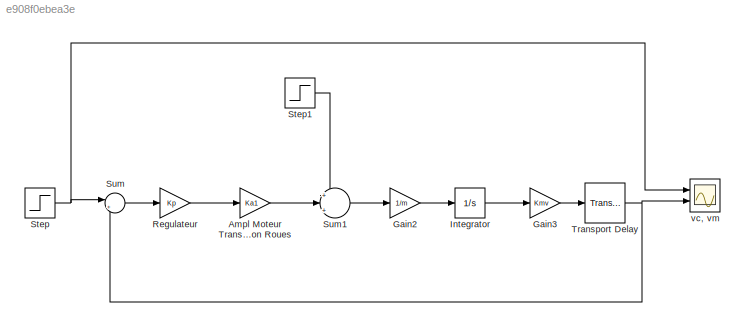
MODEL slx_e908f0ebea3e
KIND model
CONFIG AbsTol = auto
CONFIG EnableMultiTasking = off
CONFIG FixedStep = auto
CONFIG MaxStep = calculationPrecision
CONFIG MinStep = auto
CONFIG RelTol = 1e-3
CONFIG SampleTimeConstraint = Unconstrained
CONFIG SolverName = VariableStepAuto
CONFIG StartTime = 0.0
CONFIG StopTime = simTime
BLOCK [Gain] Ampl Moteur Transmission Roues 
  Gain = Ka1
BLOCK [Gain] Gain2
  Gain = 1/m
BLOCK [Gain] Gain3
  Gain = Kmv
BLOCK [Integrator] Integrator
  Ports = [1, 1]
BLOCK [Gain] Regulateur
  Gain = Kp
BLOCK [Step] Step
  After = vc
  SampleTime = 0
BLOCK [Step] Step1
  After = -m*g*sin(alpha)
  SampleTime = 0
  Time = tSlope
BLOCK [Sum] Sum
  Inputs = |+-
  Ports = [2, 1]
BLOCK [Sum] Sum1
  Inputs = +|+|-
  Ports = [3, 1]
BLOCK [TransportDelay] Transport Delay
  DelayTime = delay
  Ports = [1, 1]
BLOCK [Scope] vc, vm
  Floating = off
  NumInputPorts = 2
  Ports = [2]
  ScopeSpecificationString = Simulink.scopes.TimeScopeBlockCfg('CurrentConfiguration', extmgr.ConfigurationSet(extmgr.Configuration('Core','General UI',true),extmgr.Configuration('Core','Source UI',true),extmgr.Configuration('Sources','WiredSimulink',true),extmgr.Configuration('Visuals','Time Domain',true,'SerializedDisplays',{struct('MinYLimReal','-0.32205','MaxYLimReal','2.89848','YLabelReal','','MinYLimMag','0.00000','MaxY...<+1421ch>
LINE Ampl Moteur Transmission Roues :1 -> Sum1:2
LINE Gain2:1 -> Integrator:1
LINE Gain3:1 -> Transport Delay:1
LINE Integrator:1 -> Gain3:1
LINE Regulateur:1 -> Ampl Moteur Transmission Roues :1
LINE Step1:1 -> Sum1:1
NET Step:1 -> Sum:1, vc, vm:1
LINE Sum1:1 -> Gain2:1
LINE Sum:1 -> Regulateur:1
NET Transport Delay:1 -> Sum:2, vc, vm:2
note: NET lines group one-source signal fan-out (src -> all destinations, sorted); 1:1 wires keep LINE
